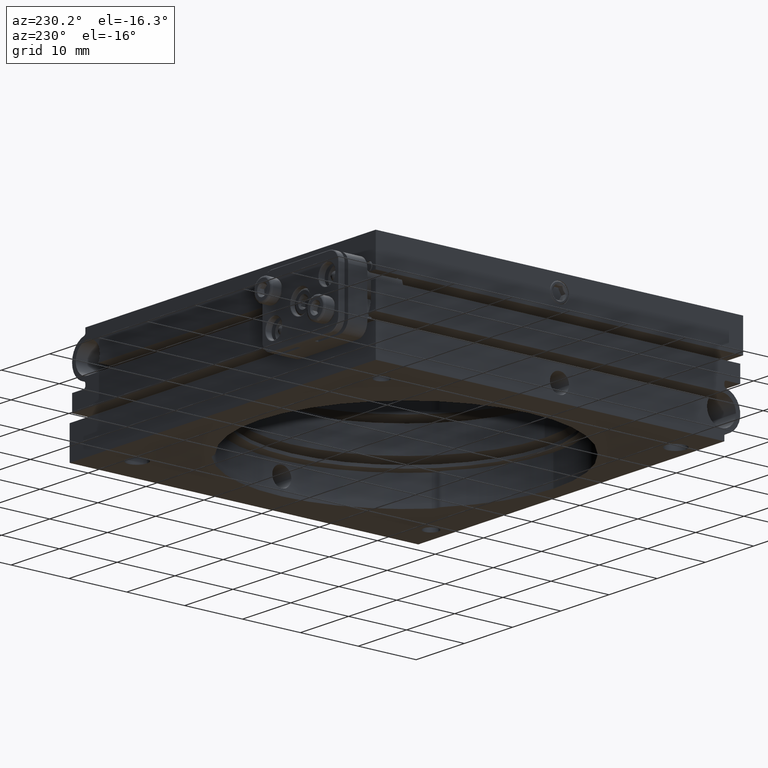
[diagram: clean part render]
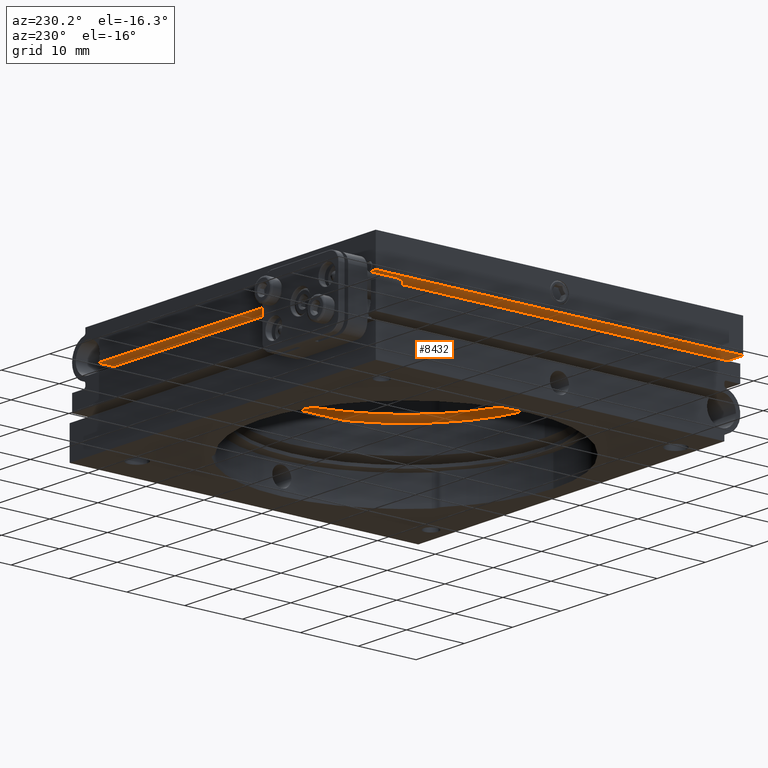
[diagram: same view with one face highlighted and labeled with its STEP entity id]
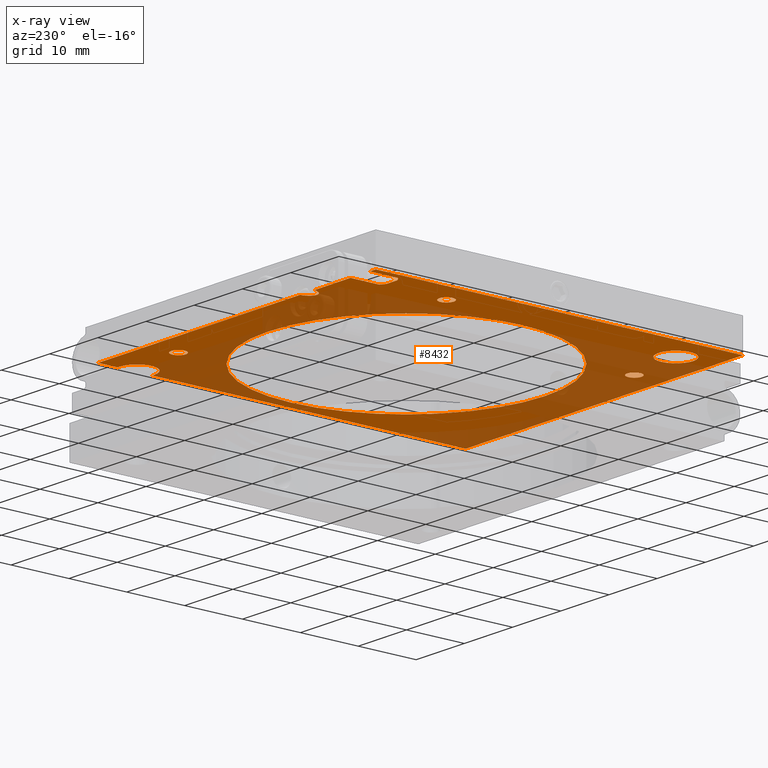
[diagram: x-ray of the same camera — body ghosted, the highlighted face saturated]
A machine part, auxiliary view. The second image highlights one B-rep face of the part: STEP entity #8432.
The next image is the same camera in x-ray: the body ghosted, the highlighted face saturated — about 50% of this face is hidden behind the body in this view.
In plain terms, the highlighted planar face has unit normal (-0, 0, 1).
Its self-contained STEP definition (entity closure, byte-faithful):
#114 = VERTEX_POINT ( 'NONE', #6285 ) ;
#153 = CARTESIAN_POINT ( 'NONE',  ( -26.99179830395961943, 26.45422036158459989, 3.499999999999997335 ) ) ;
#171 = CARTESIAN_POINT ( 'NONE',  ( -26.69999999999999218, 26.74999999999999289, 3.499999999999997335 ) ) ;
#188 = DIRECTION ( 'NONE',  ( 0.000000000000000000, -1.000000000000000000, 5.443692916245211076E-17 ) ) ;
#212 =( BOUNDED_CURVE ( )  B_SPLINE_CURVE ( 3, ( #7541, #9112, #8104, #8202 ),
 .UNSPECIFIED., .F., .T. ) 
 B_SPLINE_CURVE_WITH_KNOTS ( ( 4, 4 ),
 ( 3.141592653589793116, 4.511031059594353465 ),
 .UNSPECIFIED. ) 
 CURVE ( )  GEOMETRIC_REPRESENTATION_ITEM ( )  RATIONAL_B_SPLINE_CURVE ( ( 1.000000000000000000, 0.8497311128276567871, 0.8497311128276567871, 1.000000000000000000 ) ) 
 REPRESENTATION_ITEM ( '' )  );
#218 = VECTOR ( 'NONE', #2474, 1000.000000000000000 ) ;
#221 = DIRECTION ( 'NONE',  ( -1.000000000000000000, -1.493774482935619390E-16, 0.000000000000000000 ) ) ;
#239 = ORIENTED_EDGE ( 'NONE', *, *, #8560, .F. ) ;
#251 = CARTESIAN_POINT ( 'NONE',  ( -26.84298032511788179, 26.58479922913430471, 3.499999999999998668 ) ) ;
#288 = CARTESIAN_POINT ( 'NONE',  ( -30.25824509314510635, 26.74999999999999289, 3.499999999999996891 ) ) ;
#298 = CARTESIAN_POINT ( 'NONE',  ( -27.34228665342668663, 26.29726817036719311, 3.499999999999996447 ) ) ;
#354 = DIRECTION ( 'NONE',  ( 0.000000000000000000, -1.000000000000000000, 0.000000000000000000 ) ) ;
#387 = CIRCLE ( 'NONE', #6087, 2.999999999999999112 ) ;
#400 = CARTESIAN_POINT ( 'NONE',  ( 25.40000000000000213, 25.39999999999999858, 3.499999999999996891 ) ) ;
#407 = CARTESIAN_POINT ( 'NONE',  ( -16.17916631079278034, 30.71866658313591714, 3.499999999999996447 ) ) ;
#441 = CARTESIAN_POINT ( 'NONE',  ( -31.75000000000000000, -31.75000000000000711, 3.500000000000000888 ) ) ;
#463 = DIRECTION ( 'NONE',  ( 0.000000000000000000, -1.000000000000000000, 0.000000000000000000 ) ) ;
#485 = VERTEX_POINT ( 'NONE', #1130 ) ;
#586 = CARTESIAN_POINT ( 'NONE',  ( 25.83493649053891161, -31.75000000000000711, 3.500000000000000444 ) ) ;
#592 = DIRECTION ( 'NONE',  ( 9.244463733058732095E-33, -5.551115123125781470E-17, -1.000000000000000000 ) ) ;
#602 = CARTESIAN_POINT ( 'NONE',  ( -26.74175490685487588, 26.74999999999998934, 3.499999999999996891 ) ) ;
#622 = EDGE_CURVE ( 'NONE', #2132, #7531, #6579, .T. ) ;
#657 = EDGE_CURVE ( 'NONE', #3259, #850, #9102, .T. ) ;
#681 = VERTEX_POINT ( 'NONE', #5870 ) ;
#684 = ORIENTED_EDGE ( 'NONE', *, *, #1414, .F. ) ;
#689 = CIRCLE ( 'NONE', #3467, 2.999999999999999112 ) ;
#776 = CARTESIAN_POINT ( 'NONE',  ( 25.83493649053891161, -31.75000000000000711, 3.500000000000000444 ) ) ;
#785 = EDGE_CURVE ( 'NONE', #7748, #9664, #8956, .T. ) ;
#822 = VERTEX_POINT ( 'NONE', #6265 ) ;
#834 = EDGE_CURVE ( 'NONE', #2638, #850, #6211, .T. ) ;
#850 = VERTEX_POINT ( 'NONE', #5559 ) ;
#874 = FACE_BOUND ( 'NONE', #5545, .T. ) ;
#922 = CARTESIAN_POINT ( 'NONE',  ( -26.50797135630328327, 26.74999999999998934, 3.499999999999997335 ) ) ;
#923 = ORIENTED_EDGE ( 'NONE', *, *, #9431, .F. ) ;
#940 = VECTOR ( 'NONE', #1099, 1000.000000000000000 ) ;
#952 = LINE ( 'NONE', #2335, #9263 ) ;
#958 = EDGE_CURVE ( 'NONE', #9499, #5436, #9142, .T. ) ;
#968 = DIRECTION ( 'NONE',  ( 0.000000000000000000, -1.000000000000000000, 5.551115123125781470E-17 ) ) ;
#1024 = FACE_BOUND ( 'NONE', #6567, .T. ) ;
#1065 = ORIENTED_EDGE ( 'NONE', *, *, #5452, .F. ) ;
#1074 = CARTESIAN_POINT ( 'NONE',  ( -16.03030615433008776, 31.75000000000000000, 3.499999999999996891 ) ) ;
#1099 = DIRECTION ( 'NONE',  ( 1.000000000000000000, 1.493774482935619390E-16, 0.000000000000000000 ) ) ;
#1130 = CARTESIAN_POINT ( 'NONE',  ( -25.40000000000000924, -28.39999999999999503, 3.499999999999999556 ) ) ;
#1143 = VECTOR ( 'NONE', #3893, 1000.000000000000000 ) ;
#1181 = VERTEX_POINT ( 'NONE', #6251 ) ;
#1191 = AXIS2_PLACEMENT_3D ( 'NONE', #7066, #1865, #188 ) ;
#1202 = CARTESIAN_POINT ( 'NONE',  ( -30.00917905113535511, 26.45505410313843342, 3.499999999999996891 ) ) ;
#1250 = DIRECTION ( 'NONE',  ( 9.244463733058732095E-33, -5.551115123125781470E-17, -1.000000000000000000 ) ) ;
#1266 = CARTESIAN_POINT ( 'NONE',  ( -25.40000000000000924, -25.39999999999999503, 3.499999999999999556 ) ) ;
#1271 = CARTESIAN_POINT ( 'NONE',  ( 31.75000000000000711, 31.75000000000000000, 3.499999999999996891 ) ) ;
#1300 = VERTEX_POINT ( 'NONE', #2379 ) ;
#1373 = ORIENTED_EDGE ( 'NONE', *, *, #4613, .F. ) ;
#1414 = EDGE_CURVE ( 'NONE', #7427, #2648, #9031, .T. ) ;
#1455 = DIRECTION ( 'NONE',  ( 0.000000000000000000, -1.000000000000000000, 5.443692916245211076E-17 ) ) ;
#1504 = ORIENTED_EDGE ( 'NONE', *, *, #9725, .T. ) ;
#1544 = EDGE_CURVE ( 'NONE', #3627, #4626, #7431, .T. ) ;
#1729 = VERTEX_POINT ( 'NONE', #5822 ) ;
#1821 = CARTESIAN_POINT ( 'NONE',  ( -27.62302652511947443, 26.25000000000000000, 3.500000000000000444 ) ) ;
#1865 = DIRECTION ( 'NONE',  ( 9.244463733058732095E-33, -5.551115123125781470E-17, -1.000000000000000000 ) ) ;
#1878 = ORIENTED_EDGE ( 'NONE', *, *, #622, .T. ) ;
#1882 = CARTESIAN_POINT ( 'NONE',  ( 15.28174524399016931, 26.66184656579104484, 3.499999999999997780 ) ) ;
#1890 = EDGE_CURVE ( 'NONE', #8653, #485, #8813, .T. ) ;
#1891 = ORIENTED_EDGE ( 'NONE', *, *, #834, .T. ) ;
#1967 = CARTESIAN_POINT ( 'NONE',  ( -30.15729967093524522, 26.58525618515002265, 3.499999999999996447 ) ) ;
#1984 = CARTESIAN_POINT ( 'NONE',  ( -17.49999999999999645, 30.05294372515228929, 3.499999999999997335 ) ) ;
#2015 = CARTESIAN_POINT ( 'NONE',  ( -29.37694190994332999, 26.25000000000000000, 3.499999999999999556 ) ) ;
#2039 = DIRECTION ( 'NONE',  ( 9.244463733058732095E-33, -5.551115123125781470E-17, -1.000000000000000000 ) ) ;
#2041 = VERTEX_POINT ( 'NONE', #4079 ) ;
#2057 = DIRECTION ( 'NONE',  ( 0.000000000000000000, -1.000000000000000000, 0.000000000000000000 ) ) ;
#2074 = EDGE_CURVE ( 'NONE', #9664, #8952, #689, .T. ) ;
#2089 = CARTESIAN_POINT ( 'NONE',  ( -25.40000000000000924, -25.39999999999999503, 3.499999999999999556 ) ) ;
#2132 = VERTEX_POINT ( 'NONE', #7724 ) ;
#2251 = ORIENTED_EDGE ( 'NONE', *, *, #8596, .F. ) ;
#2283 = EDGE_CURVE ( 'NONE', #1729, #5438, #2495, .T. ) ;
#2335 = CARTESIAN_POINT ( 'NONE',  ( -26.50797135630328327, -31.75000000000000711, 3.500000000000000444 ) ) ;
#2379 = CARTESIAN_POINT ( 'NONE',  ( -30.49202864369669186, 31.75000000000000000, 3.499999999999996891 ) ) ;
#2413 = CIRCLE ( 'NONE', #2744, 1.249999999999997558 ) ;
#2474 = DIRECTION ( 'NONE',  ( -1.000000000000000000, -8.214918972158279623E-17, 0.000000000000000000 ) ) ;
#2495 = CIRCLE ( 'NONE', #1191, 23.89999999999999858 ) ;
#2514 = EDGE_CURVE ( 'NONE', #1181, #3449, #6554, .T. ) ;
#2548 = CARTESIAN_POINT ( 'NONE',  ( -27.71937525020018356, 26.25000000000000355, 3.499999999999998224 ) ) ;
#2556 = PLANE ( 'NONE',  #3490 ) ;
#2631 = LINE ( 'NONE', #5845, #3552 ) ;
#2638 = VERTEX_POINT ( 'NONE', #8318 ) ;
#2648 = VERTEX_POINT ( 'NONE', #586 ) ;
#2663 = LINE ( 'NONE', #8856, #5788 ) ;
#2714 = CARTESIAN_POINT ( 'NONE',  ( 25.83493649053891161, -31.75000000000000711, 3.500000000000000444 ) ) ;
#2744 = AXIS2_PLACEMENT_3D ( 'NONE', #5940, #9029, #2057 ) ;
#2836 = VECTOR ( 'NONE', #9252, 1000.000000000000000 ) ;
#2845 = CARTESIAN_POINT ( 'NONE',  ( 25.40000000000000213, 25.39999999999999858, 3.499999999999996891 ) ) ;
#2848 = ORIENTED_EDGE ( 'NONE', *, *, #6938, .F. ) ;
#2900 = AXIS2_PLACEMENT_3D ( 'NONE', #4484, #7458, #1455 ) ;
#2939 = DIRECTION ( 'NONE',  ( 0.000000000000000000, -1.000000000000000000, 0.000000000000000000 ) ) ;
#2983 = AXIS2_PLACEMENT_3D ( 'NONE', #9736, #1250, #7454 ) ;
#3009 = CARTESIAN_POINT ( 'NONE',  ( 25.40000000000000213, 25.39999999999999858, 3.499999999999996891 ) ) ;
#3185 = VERTEX_POINT ( 'NONE', #4758 ) ;
#3259 = VERTEX_POINT ( 'NONE', #9554 ) ;
#3264 = EDGE_LOOP ( 'NONE', ( #684, #6129, #1504, #8847, #4410, #8166, #7089, #4601, #3271, #3531, #1878, #923, #2251, #1891, #8726, #8205, #8698, #5824, #3775 ) ) ;
#3271 = ORIENTED_EDGE ( 'NONE', *, *, #3886, .F. ) ;
#3313 = ORIENTED_EDGE ( 'NONE', *, *, #6244, .F. ) ;
#3322 = FACE_BOUND ( 'NONE', #3593, .T. ) ;
#3395 = DIRECTION ( 'NONE',  ( 0.000000000000000000, -1.000000000000000000, 5.551115123125781470E-17 ) ) ;
#3449 = VERTEX_POINT ( 'NONE', #9249 ) ;
#3467 = AXIS2_PLACEMENT_3D ( 'NONE', #400, #4282, #8946 ) ;
#3490 = AXIS2_PLACEMENT_3D ( 'NONE', #7792, #7843, #968 ) ;
#3521 = EDGE_CURVE ( 'NONE', #2132, #9648, #952, .T. ) ;
#3523 = DIRECTION ( 'NONE',  ( 9.244463733058732095E-33, -5.551115123125781470E-17, -1.000000000000000000 ) ) ;
#3531 = ORIENTED_EDGE ( 'NONE', *, *, #3521, .F. ) ;
#3551 = CARTESIAN_POINT ( 'NONE',  ( -29.75211734812827657, 26.32879214942425961, 3.499999999999997780 ) ) ;
#3552 = VECTOR ( 'NONE', #3395, 1000.000000000000000 ) ;
#3593 = EDGE_LOOP ( 'NONE', ( #8438, #1065 ) ) ;
#3601 = CARTESIAN_POINT ( 'NONE',  ( -30.25824509314510635, 26.74999999999999289, 3.499999999999996891 ) ) ;
#3627 = VERTEX_POINT ( 'NONE', #288 ) ;
#3718 = CARTESIAN_POINT ( 'NONE',  ( 2.926905849962173749E-15, 23.89999999999999858, 3.499999999999998224 ) ) ;
#3771 = EDGE_CURVE ( 'NONE', #2648, #7748, #4672, .T. ) ;
#3775 = ORIENTED_EDGE ( 'NONE', *, *, #3771, .F. ) ;
#3886 = EDGE_CURVE ( 'NONE', #9648, #5436, #9423, .T. ) ;
#3893 = DIRECTION ( 'NONE',  ( -0.000000000000000000, 1.000000000000000000, -5.551115123125781470E-17 ) ) ;
#3984 = FACE_OUTER_BOUND ( 'NONE', #3264, .T. ) ;
#4079 = CARTESIAN_POINT ( 'NONE',  ( 15.28174524399016931, 27.91184656579104484, 3.499999999999997780 ) ) ;
#4282 = DIRECTION ( 'NONE',  ( 9.244463733058732095E-33, -5.551115123125781470E-17, -1.000000000000000000 ) ) ;
#4290 = DIRECTION ( 'NONE',  ( 9.244463733058732095E-33, -5.551115123125781470E-17, -1.000000000000000000 ) ) ;
#4410 = ORIENTED_EDGE ( 'NONE', *, *, #4831, .T. ) ;
#4423 = CARTESIAN_POINT ( 'NONE',  ( 28.00000000000001066, -31.75000000000000711, 3.500000000000000444 ) ) ;
#4449 = DIRECTION ( 'NONE',  ( 1.000000000000000000, 5.376276851531270788E-17, -2.984433173664629877E-33 ) ) ;
#4484 = CARTESIAN_POINT ( 'NONE',  ( -3.235562306570555686E-32, 1.942890293094022713E-16, 3.499999999999999556 ) ) ;
#4595 = CARTESIAN_POINT ( 'NONE',  ( -26.66184656579104839, 15.28174524399015866, 3.499999999999997780 ) ) ;
#4601 = ORIENTED_EDGE ( 'NONE', *, *, #958, .T. ) ;
#4613 = EDGE_CURVE ( 'NONE', #5438, #1729, #8910, .T. ) ;
#4626 = VERTEX_POINT ( 'NONE', #8425 ) ;
#4672 = LINE ( 'NONE', #776, #1143 ) ;
#4684 = CARTESIAN_POINT ( 'NONE',  ( -18.96969384566990513, 31.75000000000000000, 3.499999999999996891 ) ) ;
#4758 = CARTESIAN_POINT ( 'NONE',  ( -31.74999999999999289, 31.75000000000000000, 3.499999999999997335 ) ) ;
#4831 = EDGE_CURVE ( 'NONE', #822, #3627, #6545, .T. ) ;
#4855 = EDGE_CURVE ( 'NONE', #3185, #7427, #2631, .T. ) ;
#4869 = DIRECTION ( 'NONE',  ( 9.244463733058732095E-33, -5.551115123125781470E-17, -1.000000000000000000 ) ) ;
#4912 = CARTESIAN_POINT ( 'NONE',  ( 25.40000000000000213, 22.39999999999999858, 3.499999999999996891 ) ) ;
#4935 = AXIS2_PLACEMENT_3D ( 'NONE', #2089, #2039, #463 ) ;
#4953 = CARTESIAN_POINT ( 'NONE',  ( -27.24983015879118398, 26.32801494806878395, 3.499999999999997335 ) ) ;
#5035 = CARTESIAN_POINT ( 'NONE',  ( -30.29999999999999005, 26.74999999999999289, 3.499999999999997335 ) ) ;
#5057 = CARTESIAN_POINT ( 'NONE',  ( -16.75569921768658332, 30.05294372515229284, 3.499999999999996447 ) ) ;
#5280 = AXIS2_PLACEMENT_3D ( 'NONE', #1882, #7378, #8041 ) ;
#5436 = VERTEX_POINT ( 'NONE', #602 ) ;
#5438 = VERTEX_POINT ( 'NONE', #3718 ) ;
#5452 = EDGE_CURVE ( 'NONE', #3449, #1181, #5527, .T. ) ;
#5527 = CIRCLE ( 'NONE', #7946, 1.250000000000001110 ) ;
#5545 = EDGE_LOOP ( 'NONE', ( #8500, #1373 ) ) ;
#5559 = CARTESIAN_POINT ( 'NONE',  ( 25.83493649053891161, 31.75000000000000000, 3.499999999999996891 ) ) ;
#5666 = CIRCLE ( 'NONE', #5989, 2.999999999999999112 ) ;
#5743 = EDGE_CURVE ( 'NONE', #8952, #3259, #5666, .T. ) ;
#5788 = VECTOR ( 'NONE', #8905, 1000.000000000000000 ) ;
#5820 = DIRECTION ( 'NONE',  ( -0.000000000000000000, 1.000000000000000000, -5.551115123125781470E-17 ) ) ;
#5822 = CARTESIAN_POINT ( 'NONE',  ( -3.235562306570555686E-32, -23.89999999999999858, 3.500000000000000888 ) ) ;
#5824 = ORIENTED_EDGE ( 'NONE', *, *, #785, .F. ) ;
#5845 = CARTESIAN_POINT ( 'NONE',  ( -31.74999999999999289, -31.75000000000000711, 3.500000000000000444 ) ) ;
#5870 = CARTESIAN_POINT ( 'NONE',  ( -15.28174524399017287, -25.41184656579106260, 3.499999999999999556 ) ) ;
#5894 = CARTESIAN_POINT ( 'NONE',  ( -29.65989251491176049, 26.29786419585643387, 3.499999999999996447 ) ) ;
#5927 = CIRCLE ( 'NONE', #5280, 1.249999999999997558 ) ;
#5935 = ORIENTED_EDGE ( 'NONE', *, *, #8550, .F. ) ;
#5940 = CARTESIAN_POINT ( 'NONE',  ( 15.28174524399016931, 26.66184656579104484, 3.499999999999997780 ) ) ;
#5989 = AXIS2_PLACEMENT_3D ( 'NONE', #2845, #592, #2939 ) ;
#6087 = AXIS2_PLACEMENT_3D ( 'NONE', #1266, #4290, #7329 ) ;
#6129 = ORIENTED_EDGE ( 'NONE', *, *, #4855, .F. ) ;
#6140 = ORIENTED_EDGE ( 'NONE', *, *, #8541, .F. ) ;
#6159 = DIRECTION ( 'NONE',  ( 9.244463733058732095E-33, -5.551115123125781470E-17, -1.000000000000000000 ) ) ;
#6162 = DIRECTION ( 'NONE',  ( 1.000000000000000000, 5.376276851531270788E-17, -2.984433173664629877E-33 ) ) ;
#6211 = LINE ( 'NONE', #6874, #6373 ) ;
#6244 = EDGE_CURVE ( 'NONE', #10029, #2041, #2413, .T. ) ;
#6251 = CARTESIAN_POINT ( 'NONE',  ( -26.66184656579104839, 14.03174524399015866, 3.499999999999997780 ) ) ;
#6265 = CARTESIAN_POINT ( 'NONE',  ( -30.49202864369669541, 26.74999999999998934, 3.499999999999997335 ) ) ;
#6285 = CARTESIAN_POINT ( 'NONE',  ( -17.49999999999999645, 30.05294372515228929, 3.499999999999997335 ) ) ;
#6343 = LINE ( 'NONE', #6395, #218 ) ;
#6360 = CARTESIAN_POINT ( 'NONE',  ( -26.74175490685487588, 26.74999999999998934, 3.499999999999996891 ) ) ;
#6373 = VECTOR ( 'NONE', #6162, 1000.000000000000000 ) ;
#6395 = CARTESIAN_POINT ( 'NONE',  ( 1.127674631595373357E-15, 26.25000000000000355, 3.499999999999997335 ) ) ;
#6513 = VERTEX_POINT ( 'NONE', #8064 ) ;
#6545 = LINE ( 'NONE', #5035, #940 ) ;
#6554 = CIRCLE ( 'NONE', #2983, 1.250000000000001110 ) ;
#6567 = EDGE_LOOP ( 'NONE', ( #3313, #239 ) ) ;
#6573 = CARTESIAN_POINT ( 'NONE',  ( -25.40000000000000924, -22.39999999999999503, 3.499999999999999556 ) ) ;
#6579 = LINE ( 'NONE', #1271, #7489 ) ;
#6699 = AXIS2_PLACEMENT_3D ( 'NONE', #3009, #8389, #9358 ) ;
#6874 = CARTESIAN_POINT ( 'NONE',  ( 31.75000000000000711, 31.75000000000000000, 3.499999999999996891 ) ) ;
#6938 = EDGE_CURVE ( 'NONE', #681, #6513, #6946, .T. ) ;
#6946 = CIRCLE ( 'NONE', #8565, 1.249999999999997558 ) ;
#6971 = CARTESIAN_POINT ( 'NONE',  ( -30.49202864369669896, -31.75000000000000711, 3.500000000000000444 ) ) ;
#7066 = CARTESIAN_POINT ( 'NONE',  ( -3.235562306570555686E-32, 1.942890293094022713E-16, 3.499999999999999556 ) ) ;
#7089 = ORIENTED_EDGE ( 'NONE', *, *, #7694, .F. ) ;
#7169 = ORIENTED_EDGE ( 'NONE', *, *, #1890, .F. ) ;
#7188 = VECTOR ( 'NONE', #8832, 1000.000000000000000 ) ;
#7189 = DIRECTION ( 'NONE',  ( 0.000000000000000000, -1.000000000000000000, 0.000000000000000000 ) ) ;
#7266 = VECTOR ( 'NONE', #221, 1000.000000000000000 ) ;
#7294 = CARTESIAN_POINT ( 'NONE',  ( 15.28174524399016931, 25.41184656579104839, 3.499999999999997780 ) ) ;
#7329 = DIRECTION ( 'NONE',  ( 0.000000000000000000, -1.000000000000000000, 0.000000000000000000 ) ) ;
#7336 = VECTOR ( 'NONE', #5820, 1000.000000000000000 ) ;
#7337 = EDGE_LOOP ( 'NONE', ( #6140, #2848 ) ) ;
#7378 = DIRECTION ( 'NONE',  ( 9.244463733058732095E-33, -5.551115123125781470E-17, -1.000000000000000000 ) ) ;
#7427 = VERTEX_POINT ( 'NONE', #441 ) ;
#7431 = B_SPLINE_CURVE_WITH_KNOTS ( 'NONE', 3,
 ( #3601, #1967, #1202, #3551, #5894, #8981, #2015, #7453 ),
 .UNSPECIFIED., .F., .F.,
 ( 4, 2, 2, 4 ),
 ( 0.000000000000000000, 0.0005709922195212328811, 0.0008564883292818492675, 0.001141984439042465762 ),
 .UNSPECIFIED. ) ;
#7453 = CARTESIAN_POINT ( 'NONE',  ( -29.28062474979979157, 26.25000000000000355, 3.499999999999997335 ) ) ;
#7454 = DIRECTION ( 'NONE',  ( 0.000000000000000000, -1.000000000000000000, 0.000000000000000000 ) ) ;
#7458 = DIRECTION ( 'NONE',  ( 9.244463733058732095E-33, -5.551115123125781470E-17, -1.000000000000000000 ) ) ;
#7489 = VECTOR ( 'NONE', #4449, 1000.000000000000000 ) ;
#7531 = VERTEX_POINT ( 'NONE', #4684 ) ;
#7541 = CARTESIAN_POINT ( 'NONE',  ( -17.49999999999999645, 30.05294372515228929, 3.499999999999997335 ) ) ;
#7694 = EDGE_CURVE ( 'NONE', #9499, #4626, #6343, .T. ) ;
#7724 = CARTESIAN_POINT ( 'NONE',  ( -26.50797135630328683, 31.75000000000000000, 3.499999999999996891 ) ) ;
#7748 = VERTEX_POINT ( 'NONE', #9823 ) ;
#7792 = CARTESIAN_POINT ( 'NONE',  ( 28.00000000000001066, -31.75000000000000711, 3.500000000000000444 ) ) ;
#7843 = DIRECTION ( 'NONE',  ( -9.244463733058732095E-33, 5.551115123125781470E-17, 1.000000000000000000 ) ) ;
#7885 = CARTESIAN_POINT ( 'NONE',  ( -27.52818373449232681, 26.25856972850674609, 3.499999999999996891 ) ) ;
#7946 = AXIS2_PLACEMENT_3D ( 'NONE', #4595, #6159, #9253 ) ;
#7991 = FACE_BOUND ( 'NONE', #7337, .T. ) ;
#8041 = DIRECTION ( 'NONE',  ( 0.000000000000000000, -1.000000000000000000, 0.000000000000000000 ) ) ;
#8064 = CARTESIAN_POINT ( 'NONE',  ( -15.28174524399017287, -27.91184656579105550, 3.499999999999999556 ) ) ;
#8088 = CARTESIAN_POINT ( 'NONE',  ( -15.28174524399017287, -26.66184656579105905, 3.499999999999999556 ) ) ;
#8104 = CARTESIAN_POINT ( 'NONE',  ( -18.82083368920721611, 30.71866658313592069, 3.499999999999997335 ) ) ;
#8166 = ORIENTED_EDGE ( 'NONE', *, *, #1544, .T. ) ;
#8183 = EDGE_LOOP ( 'NONE', ( #5935, #7169 ) ) ;
#8202 = CARTESIAN_POINT ( 'NONE',  ( -18.96969384566990513, 31.75000000000000000, 3.499999999999996891 ) ) ;
#8205 = ORIENTED_EDGE ( 'NONE', *, *, #5743, .F. ) ;
#8312 = CARTESIAN_POINT ( 'NONE',  ( 25.40000000000000213, 28.39999999999999858, 3.499999999999996891 ) ) ;
#8318 = CARTESIAN_POINT ( 'NONE',  ( -16.03030615433008776, 31.75000000000000000, 3.499999999999996891 ) ) ;
#8351 = CARTESIAN_POINT ( 'NONE',  ( -27.71937525020018356, 26.25000000000000355, 3.499999999999998224 ) ) ;
#8389 = DIRECTION ( 'NONE',  ( 9.244463733058732095E-33, -5.551115123125781470E-17, -1.000000000000000000 ) ) ;
#8425 = CARTESIAN_POINT ( 'NONE',  ( -29.28062474979979157, 26.25000000000000355, 3.499999999999997335 ) ) ;
#8432 = ADVANCED_FACE ( 'NONE', ( #3984, #874, #7991, #1024, #3322, #9507 ), #2556, .F. ) ;
#8438 = ORIENTED_EDGE ( 'NONE', *, *, #2514, .F. ) ;
#8500 = ORIENTED_EDGE ( 'NONE', *, *, #2283, .F. ) ;
#8541 = EDGE_CURVE ( 'NONE', #6513, #681, #9635, .T. ) ;
#8550 = EDGE_CURVE ( 'NONE', #485, #8653, #387, .T. ) ;
#8560 = EDGE_CURVE ( 'NONE', #2041, #10029, #5927, .T. ) ;
#8565 = AXIS2_PLACEMENT_3D ( 'NONE', #8707, #4869, #7189 ) ;
#8596 = EDGE_CURVE ( 'NONE', #2638, #114, #9936, .T. ) ;
#8653 = VERTEX_POINT ( 'NONE', #6573 ) ;
#8666 = EDGE_CURVE ( 'NONE', #822, #1300, #9150, .T. ) ;
#8698 = ORIENTED_EDGE ( 'NONE', *, *, #2074, .F. ) ;
#8707 = CARTESIAN_POINT ( 'NONE',  ( -15.28174524399017287, -26.66184656579105905, 3.499999999999999556 ) ) ;
#8726 = ORIENTED_EDGE ( 'NONE', *, *, #657, .F. ) ;
#8813 = CIRCLE ( 'NONE', #4935, 2.999999999999999112 ) ;
#8832 = DIRECTION ( 'NONE',  ( 1.000000000000000000, 5.131708243377014121E-49, 9.244463733058732095E-33 ) ) ;
#8847 = ORIENTED_EDGE ( 'NONE', *, *, #8666, .F. ) ;
#8856 = CARTESIAN_POINT ( 'NONE',  ( 31.75000000000000711, 31.75000000000000000, 3.499999999999996891 ) ) ;
#8905 = DIRECTION ( 'NONE',  ( 1.000000000000000000, 5.376276851531270788E-17, -2.984433173664629877E-33 ) ) ;
#8910 = CIRCLE ( 'NONE', #2900, 23.89999999999999858 ) ;
#8946 = DIRECTION ( 'NONE',  ( 0.000000000000000000, -1.000000000000000000, 0.000000000000000000 ) ) ;
#8952 = VERTEX_POINT ( 'NONE', #8312 ) ;
#8956 = CIRCLE ( 'NONE', #6699, 2.999999999999999112 ) ;
#8981 = CARTESIAN_POINT ( 'NONE',  ( -29.47314769627585207, 26.25870715995429094, 3.499999999999996003 ) ) ;
#9029 = DIRECTION ( 'NONE',  ( 9.244463733058732095E-33, -5.551115123125781470E-17, -1.000000000000000000 ) ) ;
#9031 = LINE ( 'NONE', #4423, #7188 ) ;
#9102 = LINE ( 'NONE', #2714, #7336 ) ;
#9112 = CARTESIAN_POINT ( 'NONE',  ( -18.24430078231341312, 30.05294372515228929, 3.499999999999997335 ) ) ;
#9142 = B_SPLINE_CURVE_WITH_KNOTS ( 'NONE', 3,
 ( #2548, #1821, #7885, #298, #4953, #153, #251, #6360 ),
 .UNSPECIFIED., .F., .F.,
 ( 4, 2, 2, 4 ),
 ( 0.000000000000000000, 0.0002846840654872624774, 0.0005693681309745249547, 0.001138736261949054463 ),
 .UNSPECIFIED. ) ;
#9150 = LINE ( 'NONE', #6971, #2836 ) ;
#9249 = CARTESIAN_POINT ( 'NONE',  ( -26.66184656579104839, 16.53174524399016221, 3.499999999999997780 ) ) ;
#9252 = DIRECTION ( 'NONE',  ( -0.000000000000000000, 1.000000000000000000, -5.551115123125781470E-17 ) ) ;
#9253 = DIRECTION ( 'NONE',  ( 0.000000000000000000, -1.000000000000000000, 0.000000000000000000 ) ) ;
#9263 = VECTOR ( 'NONE', #9994, 1000.000000000000000 ) ;
#9358 = DIRECTION ( 'NONE',  ( 1.619075244245020376E-14, -1.000000000000000000, 0.000000000000000000 ) ) ;
#9423 = LINE ( 'NONE', #171, #7266 ) ;
#9431 = EDGE_CURVE ( 'NONE', #114, #7531, #212, .T. ) ;
#9480 = AXIS2_PLACEMENT_3D ( 'NONE', #8088, #3523, #354 ) ;
#9499 = VERTEX_POINT ( 'NONE', #8351 ) ;
#9507 = FACE_BOUND ( 'NONE', #8183, .T. ) ;
#9554 = CARTESIAN_POINT ( 'NONE',  ( 25.83493649053891161, 28.36830427166718849, 3.499999999999996447 ) ) ;
#9635 = CIRCLE ( 'NONE', #9480, 1.249999999999997558 ) ;
#9648 = VERTEX_POINT ( 'NONE', #922 ) ;
#9664 = VERTEX_POINT ( 'NONE', #4912 ) ;
#9725 = EDGE_CURVE ( 'NONE', #3185, #1300, #2663, .T. ) ;
#9736 = CARTESIAN_POINT ( 'NONE',  ( -26.66184656579104839, 15.28174524399015866, 3.499999999999997780 ) ) ;
#9823 = CARTESIAN_POINT ( 'NONE',  ( 25.83493649053891161, 22.43169572833280867, 3.499999999999997780 ) ) ;
#9936 =( BOUNDED_CURVE ( )  B_SPLINE_CURVE ( 3, ( #1074, #407, #5057, #1984 ),
 .UNSPECIFIED., .F., .T. ) 
 B_SPLINE_CURVE_WITH_KNOTS ( ( 4, 4 ),
 ( 1.772154247585232101, 3.141592653589793116 ),
 .UNSPECIFIED. ) 
 CURVE ( )  GEOMETRIC_REPRESENTATION_ITEM ( )  RATIONAL_B_SPLINE_CURVE ( ( 1.000000000000000000, 0.8497311128276564540, 0.8497311128276564540, 1.000000000000000000 ) ) 
 REPRESENTATION_ITEM ( '' )  );
#9994 = DIRECTION ( 'NONE',  ( 0.000000000000000000, -1.000000000000000000, 5.551115123125781470E-17 ) ) ;
#10029 = VERTEX_POINT ( 'NONE', #7294 ) ;